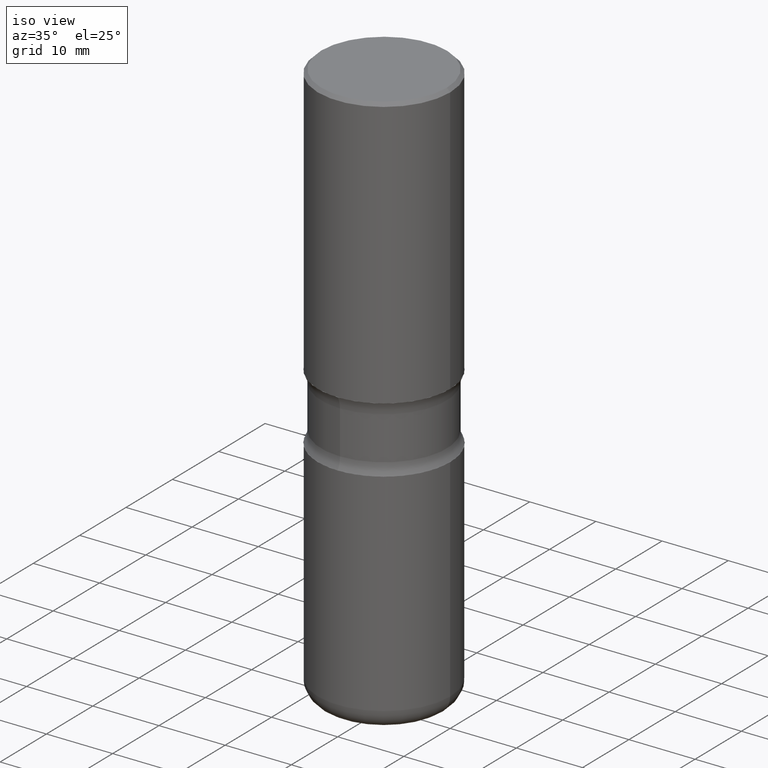
[diagram: clean part render]
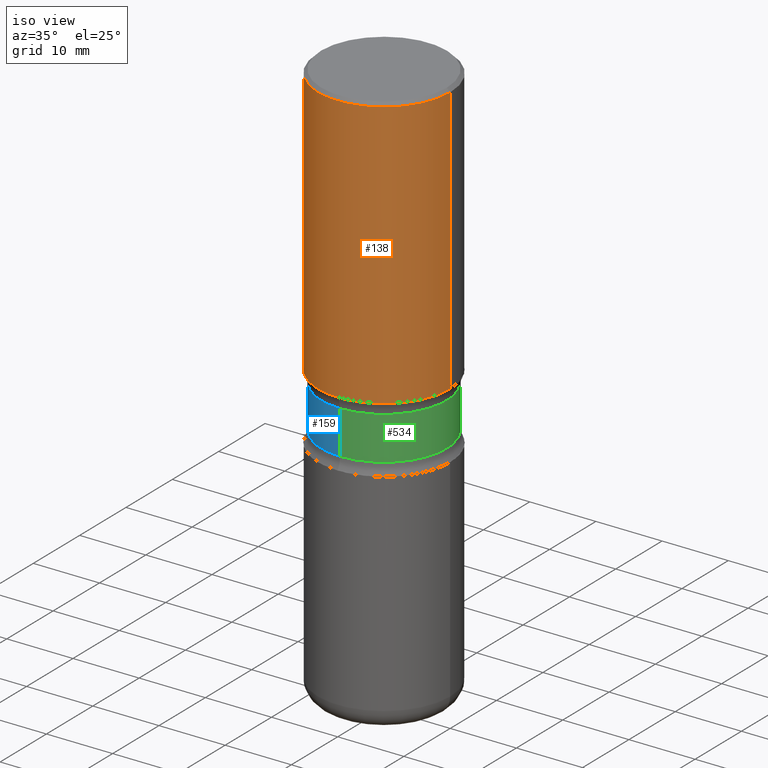
[diagram: same view with three faces highlighted in distinct colors, each labeled with its STEP entity id]
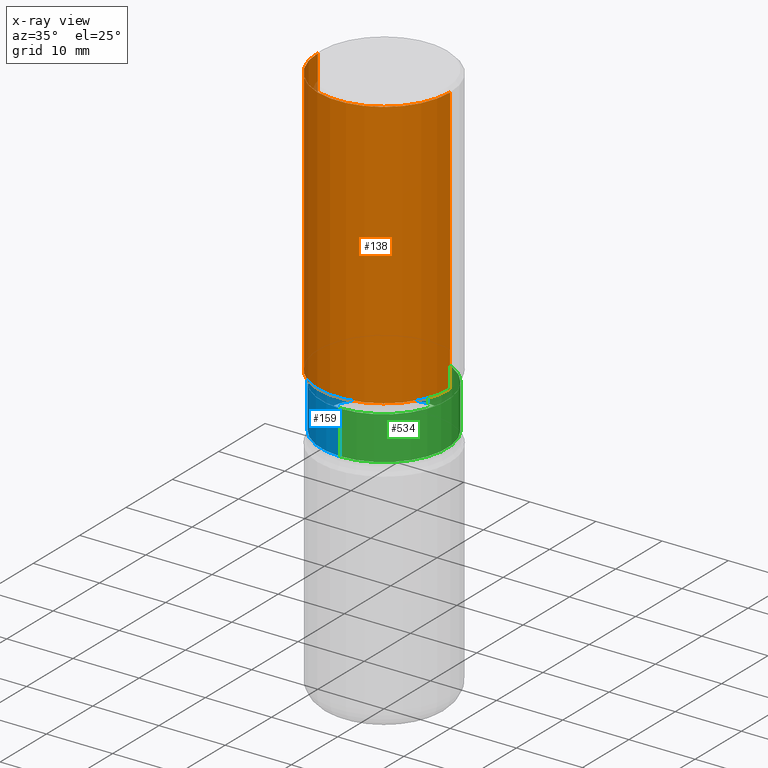
[diagram: x-ray of the same camera — body ghosted, the three highlighted faces saturated]
A machine part, iso view with three faces highlighted in distinct colors.
The next image is the same camera in x-ray (body ghosted, the three faces saturated) — at least one of them is partly hidden behind the body in this view.
Their STEP definitions:

[orange] entity #138 — the highlighted cylindrical surface (partial cylindrical patch) has radius 10 mm, axis along (-0, 0, 1).
#8 = CARTESIAN_POINT ( 'NONE',  ( 3.947231200063429727E-29, -5.635600029026721857E-15, -1.614100000000000090 ) ) ;
#22 = CARTESIAN_POINT ( 'NONE',  ( -0.3937000000000003830, 2.797406750687517153E-15, -1.936584745033358137E-29 ) ) ;
#24 = DIRECTION ( 'NONE',  ( -2.445468806185136597E-29, 3.491481338843145583E-15, 1.000000000000000000 ) ) ;
#32 = LINE ( 'NONE', #22, #525 ) ;
#47 = ORIENTED_EDGE ( 'NONE', *, *, #52, .F. ) ;
#52 = EDGE_CURVE ( 'NONE', #344, #513, #32, .T. ) ;
#58 = VECTOR ( 'NONE', #409, 39.37007874015748143 ) ;
#60 = CARTESIAN_POINT ( 'NONE',  ( 0.3937000000000003830, -2.749192406205085978E-15, 1.919750796630861853E-29 ) ) ;
#67 = DIRECTION ( 'NONE',  ( -2.445468806185136597E-29, 3.491481338843145583E-15, 1.000000000000000000 ) ) ;
#69 = AXIS2_PLACEMENT_3D ( 'NONE', #366, #67, #418 ) ;
#73 = DIRECTION ( 'NONE',  ( 1.000000000000000000, -6.982962677686266711E-15, 0.000000000000000000 ) ) ;
#85 = ORIENTED_EDGE ( 'NONE', *, *, #256, .T. ) ;
#121 = EDGE_LOOP ( 'NONE', ( #47, #221, #85, #381 ) ) ;
#138 = ADVANCED_FACE ( 'NONE', ( #272 ), #498, .T. ) ;
#158 = DIRECTION ( 'NONE',  ( -2.445468806185136877E-29, 3.491481338843145188E-15, 1.000000000000000000 ) ) ;
#206 = CARTESIAN_POINT ( 'NONE',  ( 4.890937612370289799E-31, -6.982962677686315028E-17, -0.02000000000000006981 ) ) ;
#221 = ORIENTED_EDGE ( 'NONE', *, *, #527, .T. ) ;
#222 = DIRECTION ( 'NONE',  ( -2.445468806185136597E-29, 3.491481338843145583E-15, 1.000000000000000000 ) ) ;
#233 = AXIS2_PLACEMENT_3D ( 'NONE', #8, #222, #399 ) ;
#256 = EDGE_CURVE ( 'NONE', #416, #300, #315, .T. ) ;
#272 = FACE_OUTER_BOUND ( 'NONE', #121, .T. ) ;
#300 = VERTEX_POINT ( 'NONE', #401 ) ;
#315 = LINE ( 'NONE', #60, #58 ) ;
#344 = VERTEX_POINT ( 'NONE', #415 ) ;
#366 = CARTESIAN_POINT ( 'NONE',  ( 0.000000000000000000, 0.000000000000000000, 0.000000000000000000 ) ) ;
#380 = CARTESIAN_POINT ( 'NONE',  ( -0.3937000000000002164, 2.679362779428221496E-15, -0.02000000000000006981 ) ) ;
#381 = ORIENTED_EDGE ( 'NONE', *, *, #471, .F. ) ;
#399 = DIRECTION ( 'NONE',  ( 1.000000000000000000, -6.982962677686265922E-15, 0.000000000000000000 ) ) ;
#401 = CARTESIAN_POINT ( 'NONE',  ( 0.3937000000000002164, -2.770807688499516917E-15, -0.02000000000000006981 ) ) ;
#409 = DIRECTION ( 'NONE',  ( -2.445468806185136877E-29, 3.491481338843145188E-15, 1.000000000000000000 ) ) ;
#415 = CARTESIAN_POINT ( 'NONE',  ( -0.3937000000000004385, -5.530807721427478371E-17, -1.614100000000000090 ) ) ;
#416 = VERTEX_POINT ( 'NONE', #475 ) ;
#418 = DIRECTION ( 'NONE',  ( 1.000000000000000000, -6.982962677686266711E-15, 4.876176775795935793E-29 ) ) ;
#439 = CIRCLE ( 'NONE', #491, 0.3937000000000002164 ) ;
#471 = EDGE_CURVE ( 'NONE', #513, #300, #439, .T. ) ;
#475 = CARTESIAN_POINT ( 'NONE',  ( 0.3937000000000004385, -8.384792435231807440E-15, -1.614100000000000090 ) ) ;
#491 = AXIS2_PLACEMENT_3D ( 'NONE', #206, #24, #73 ) ;
#498 = CYLINDRICAL_SURFACE ( 'NONE', #69, 0.3937000000000003830 ) ;
#508 = CIRCLE ( 'NONE', #233, 0.3937000000000004385 ) ;
#513 = VERTEX_POINT ( 'NONE', #380 ) ;
#525 = VECTOR ( 'NONE', #158, 39.37007874015748143 ) ;
#527 = EDGE_CURVE ( 'NONE', #344, #416, #508, .T. ) ;

[blue] entity #159 — the highlighted cylindrical surface (partial cylindrical patch) has radius 9.4869 mm, axis along (0, -0, -1).
#42 = AXIS2_PLACEMENT_3D ( 'NONE', #522, #132, #485 ) ;
#55 = CARTESIAN_POINT ( 'NONE',  ( 4.746788003328820171E-29, -6.767459842010962398E-15, -1.939668069159901087 ) ) ;
#62 = ORIENTED_EDGE ( 'NONE', *, *, #453, .F. ) ;
#81 = CARTESIAN_POINT ( 'NONE',  ( -2.562396002167584581E-15, -0.3735000000000119336, -3.385799999999999255 ) ) ;
#97 = VECTOR ( 'NONE', #244, 39.37007874015748143 ) ;
#101 = CARTESIAN_POINT ( 'NONE',  ( 2.608136560115860833E-15, 0.3734999999999940590, -1.682231930840100809 ) ) ;
#115 = CARTESIAN_POINT ( 'NONE',  ( 8.211298984437260765E-29, -1.191965265672483002E-14, -3.385800000000000143 ) ) ;
#126 = CARTESIAN_POINT ( 'NONE',  ( -2.631687031945119691E-15, -0.3735000000000057718, -1.682231930840098144 ) ) ;
#132 = DIRECTION ( 'NONE',  ( 2.395708792001990434E-29, -3.562740511317534079E-15, -1.000000000000000000 ) ) ;
#136 = CARTESIAN_POINT ( 'NONE',  ( -2.631687031945112197E-15, -0.3735000000000067710, -1.939668069159899533 ) ) ;
#140 = FACE_OUTER_BOUND ( 'NONE', #176, .T. ) ;
#159 = ADVANCED_FACE ( 'NONE', ( #140 ), #324, .T. ) ;
#176 = EDGE_LOOP ( 'NONE', ( #62, #292, #253, #517 ) ) ;
#192 = CARTESIAN_POINT ( 'NONE',  ( 2.608136560115867538E-15, 0.3734999999999932263, -1.939668069159902419 ) ) ;
#204 = VERTEX_POINT ( 'NONE', #101 ) ;
#225 = DIRECTION ( 'NONE',  ( 6.982962677686265922E-15, 1.000000000000000000, -3.657092360996336056E-15 ) ) ;
#244 = DIRECTION ( 'NONE',  ( 2.395708792001990154E-29, -3.562740511317534079E-15, -1.000000000000000000 ) ) ;
#250 = VERTEX_POINT ( 'NONE', #136 ) ;
#253 = ORIENTED_EDGE ( 'NONE', *, *, #408, .T. ) ;
#273 = VERTEX_POINT ( 'NONE', #126 ) ;
#285 = DIRECTION ( 'NONE',  ( 6.982962677686265922E-15, 1.000000000000000000, -2.925673888797068924E-15 ) ) ;
#288 = EDGE_CURVE ( 'NONE', #273, #204, #333, .T. ) ;
#292 = ORIENTED_EDGE ( 'NONE', *, *, #288, .T. ) ;
#294 = EDGE_CURVE ( 'NONE', #250, #481, #461, .T. ) ;
#324 = CYLINDRICAL_SURFACE ( 'NONE', #410, 0.3734999999999999987 ) ;
#333 = CIRCLE ( 'NONE', #42, 0.3734999999999999432 ) ;
#338 = LINE ( 'NONE', #472, #553 ) ;
#408 = EDGE_CURVE ( 'NONE', #204, #481, #338, .T. ) ;
#410 = AXIS2_PLACEMENT_3D ( 'NONE', #115, #535, #285 ) ;
#428 = AXIS2_PLACEMENT_3D ( 'NONE', #55, #488, #225 ) ;
#453 = EDGE_CURVE ( 'NONE', #273, #250, #470, .T. ) ;
#461 = CIRCLE ( 'NONE', #428, 0.3734999999999999987 ) ;
#470 = LINE ( 'NONE', #81, #97 ) ;
#472 = CARTESIAN_POINT ( 'NONE',  ( 2.608136560115902248E-15, 0.3734999999999880638, -3.385800000000001475 ) ) ;
#481 = VERTEX_POINT ( 'NONE', #192 ) ;
#485 = DIRECTION ( 'NONE',  ( 6.982962677686264344E-15, 1.000000000000000000, -3.657092360996336845E-15 ) ) ;
#488 = DIRECTION ( 'NONE',  ( 2.395708792001990434E-29, -3.562740511317534079E-15, -1.000000000000000000 ) ) ;
#517 = ORIENTED_EDGE ( 'NONE', *, *, #294, .F. ) ;
#522 = CARTESIAN_POINT ( 'NONE',  ( 4.130045983377031678E-29, -5.850281682941861671E-15, -1.682231930840099476 ) ) ;
#535 = DIRECTION ( 'NONE',  ( 2.395708792001990434E-29, -3.562740511317534079E-15, -1.000000000000000000 ) ) ;
#553 = VECTOR ( 'NONE', #557, 39.37007874015748143 ) ;
#557 = DIRECTION ( 'NONE',  ( 2.395708792001990154E-29, -3.562740511317534079E-15, -1.000000000000000000 ) ) ;

[green] entity #534 — the highlighted cylindrical surface (partial cylindrical patch) has radius 9.4869 mm, axis along (0, -0, -1).
#3 = AXIS2_PLACEMENT_3D ( 'NONE', #395, #173, #190 ) ;
#12 = AXIS2_PLACEMENT_3D ( 'NONE', #302, #79, #160 ) ;
#19 = CIRCLE ( 'NONE', #12, 0.3734999999999999432 ) ;
#79 = DIRECTION ( 'NONE',  ( 2.395708792001990434E-29, -3.562740511317534079E-15, -1.000000000000000000 ) ) ;
#81 = CARTESIAN_POINT ( 'NONE',  ( -2.562396002167584581E-15, -0.3735000000000119336, -3.385799999999999255 ) ) ;
#97 = VECTOR ( 'NONE', #244, 39.37007874015748143 ) ;
#101 = CARTESIAN_POINT ( 'NONE',  ( 2.608136560115860833E-15, 0.3734999999999940590, -1.682231930840100809 ) ) ;
#123 = ORIENTED_EDGE ( 'NONE', *, *, #453, .T. ) ;
#125 = ORIENTED_EDGE ( 'NONE', *, *, #408, .F. ) ;
#126 = CARTESIAN_POINT ( 'NONE',  ( -2.631687031945119691E-15, -0.3735000000000057718, -1.682231930840098144 ) ) ;
#136 = CARTESIAN_POINT ( 'NONE',  ( -2.631687031945112197E-15, -0.3735000000000067710, -1.939668069159899533 ) ) ;
#160 = DIRECTION ( 'NONE',  ( 6.982962677686264344E-15, 1.000000000000000000, -3.657092360996336845E-15 ) ) ;
#166 = ORIENTED_EDGE ( 'NONE', *, *, #398, .T. ) ;
#173 = DIRECTION ( 'NONE',  ( 2.395708792001990434E-29, -3.562740511317534079E-15, -1.000000000000000000 ) ) ;
#190 = DIRECTION ( 'NONE',  ( 6.982962677686265922E-15, 1.000000000000000000, -2.925673888797068924E-15 ) ) ;
#192 = CARTESIAN_POINT ( 'NONE',  ( 2.608136560115867538E-15, 0.3734999999999932263, -1.939668069159902419 ) ) ;
#204 = VERTEX_POINT ( 'NONE', #101 ) ;
#212 = ORIENTED_EDGE ( 'NONE', *, *, #264, .F. ) ;
#244 = DIRECTION ( 'NONE',  ( 2.395708792001990154E-29, -3.562740511317534079E-15, -1.000000000000000000 ) ) ;
#250 = VERTEX_POINT ( 'NONE', #136 ) ;
#264 = EDGE_CURVE ( 'NONE', #481, #250, #403, .T. ) ;
#273 = VERTEX_POINT ( 'NONE', #126 ) ;
#302 = CARTESIAN_POINT ( 'NONE',  ( 4.130045983377031678E-29, -5.850281682941861671E-15, -1.682231930840099476 ) ) ;
#305 = CYLINDRICAL_SURFACE ( 'NONE', #3, 0.3734999999999999987 ) ;
#312 = AXIS2_PLACEMENT_3D ( 'NONE', #511, #442, #359 ) ;
#338 = LINE ( 'NONE', #472, #553 ) ;
#359 = DIRECTION ( 'NONE',  ( 6.982962677686265922E-15, 1.000000000000000000, -3.657092360996336056E-15 ) ) ;
#367 = EDGE_LOOP ( 'NONE', ( #166, #123, #212, #125 ) ) ;
#395 = CARTESIAN_POINT ( 'NONE',  ( 8.211298984437260765E-29, -1.191965265672483002E-14, -3.385800000000000143 ) ) ;
#398 = EDGE_CURVE ( 'NONE', #204, #273, #19, .T. ) ;
#403 = CIRCLE ( 'NONE', #312, 0.3734999999999999987 ) ;
#408 = EDGE_CURVE ( 'NONE', #204, #481, #338, .T. ) ;
#442 = DIRECTION ( 'NONE',  ( 2.395708792001990434E-29, -3.562740511317534079E-15, -1.000000000000000000 ) ) ;
#453 = EDGE_CURVE ( 'NONE', #273, #250, #470, .T. ) ;
#470 = LINE ( 'NONE', #81, #97 ) ;
#472 = CARTESIAN_POINT ( 'NONE',  ( 2.608136560115902248E-15, 0.3734999999999880638, -3.385800000000001475 ) ) ;
#481 = VERTEX_POINT ( 'NONE', #192 ) ;
#487 = FACE_OUTER_BOUND ( 'NONE', #367, .T. ) ;
#511 = CARTESIAN_POINT ( 'NONE',  ( 4.746788003328820171E-29, -6.767459842010962398E-15, -1.939668069159901087 ) ) ;
#534 = ADVANCED_FACE ( 'NONE', ( #487 ), #305, .T. ) ;
#553 = VECTOR ( 'NONE', #557, 39.37007874015748143 ) ;
#557 = DIRECTION ( 'NONE',  ( 2.395708792001990154E-29, -3.562740511317534079E-15, -1.000000000000000000 ) ) ;